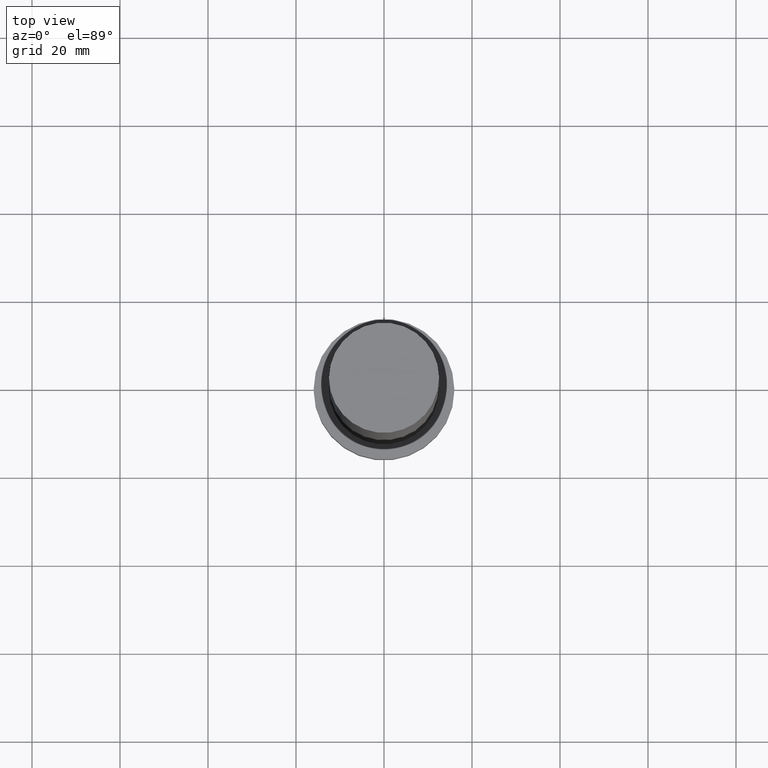
[diagram: clean part render]
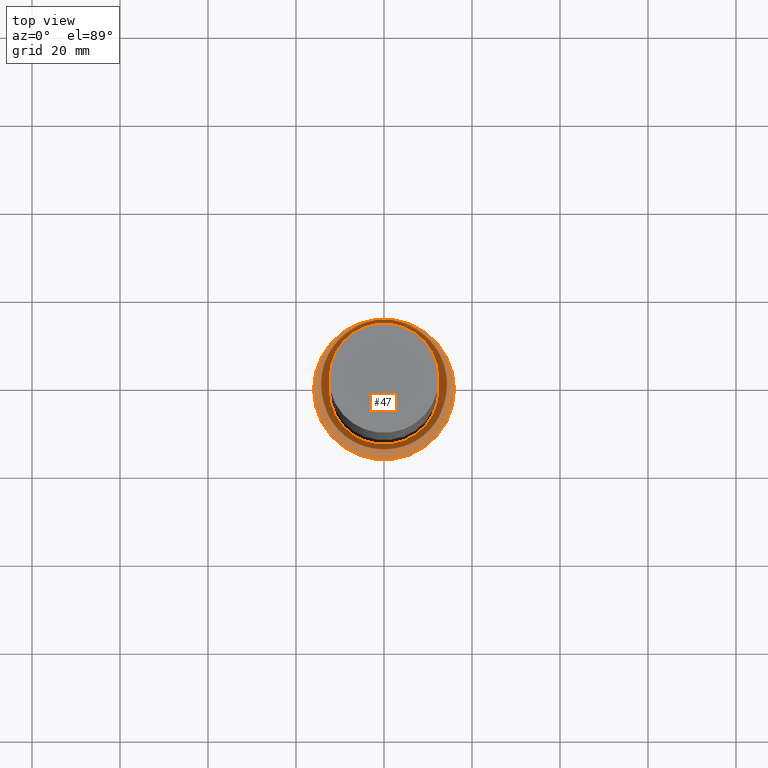
[diagram: same view with one face highlighted and labeled with its STEP entity id]
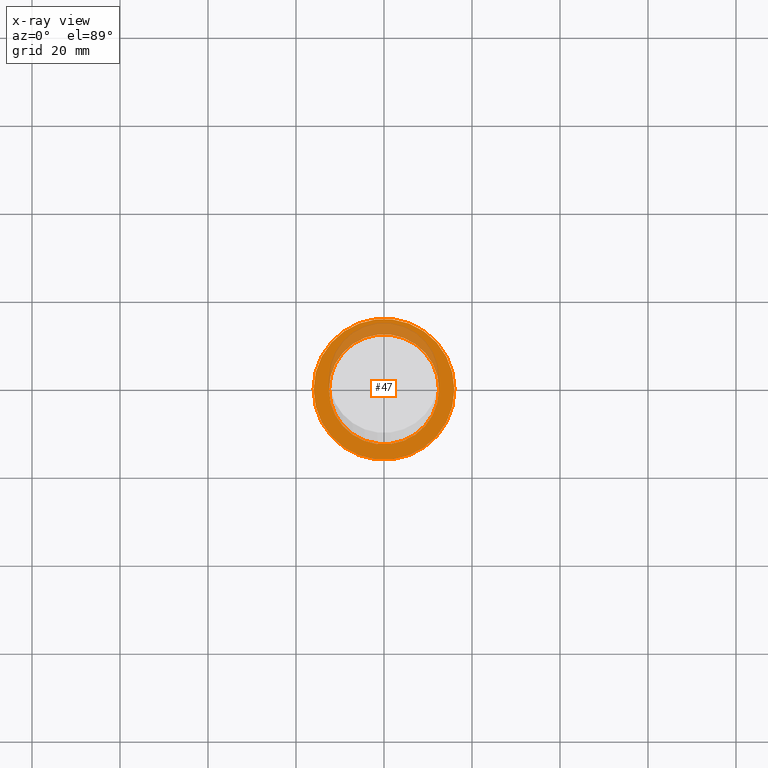
[diagram: x-ray of the same camera — body ghosted, the highlighted face saturated]
A machine part, top view. The second image highlights one B-rep face of the part: STEP entity #47.
The next image is the same camera in x-ray: the body ghosted, the highlighted face saturated — about 21% of this face is hidden behind the body in this view.
In plain terms, the highlighted planar face has unit normal (0, 0, 1).
Its self-contained STEP definition (entity closure, byte-faithful):
#7 = DIRECTION ( 'NONE',  ( 1.000000000000000000, 0.000000000000000000, 0.000000000000000000 ) ) ;
#11 = EDGE_LOOP ( 'NONE', ( #186, #249 ) ) ;
#12 = CIRCLE ( 'NONE', #31, 16.00000000000000000 ) ;
#14 = FACE_OUTER_BOUND ( 'NONE', #76, .T. ) ;
#18 = AXIS2_PLACEMENT_3D ( 'NONE', #171, #188, #152 ) ;
#22 = EDGE_CURVE ( 'NONE', #247, #222, #238, .T. ) ;
#31 = AXIS2_PLACEMENT_3D ( 'NONE', #62, #215, #45 ) ;
#36 = ORIENTED_EDGE ( 'NONE', *, *, #226, .T. ) ;
#43 = EDGE_CURVE ( 'NONE', #173, #77, #70, .T. ) ;
#45 = DIRECTION ( 'NONE',  ( 1.000000000000000000, 0.000000000000000000, 0.000000000000000000 ) ) ;
#47 = ADVANCED_FACE ( 'NONE', ( #57, #14 ), #153, .T. ) ;
#57 = FACE_BOUND ( 'NONE', #11, .T. ) ;
#62 = CARTESIAN_POINT ( 'NONE',  ( 0.000000000000000000, 0.000000000000000000, 10.00000000000000000 ) ) ;
#70 = CIRCLE ( 'NONE', #18, 12.50000000000000000 ) ;
#76 = EDGE_LOOP ( 'NONE', ( #36, #147 ) ) ;
#77 = VERTEX_POINT ( 'NONE', #213 ) ;
#87 = DIRECTION ( 'NONE',  ( 0.000000000000000000, 0.000000000000000000, 1.000000000000000000 ) ) ;
#124 = AXIS2_PLACEMENT_3D ( 'NONE', #225, #131, #208 ) ;
#131 = DIRECTION ( 'NONE',  ( 0.000000000000000000, 0.000000000000000000, 1.000000000000000000 ) ) ;
#142 = CARTESIAN_POINT ( 'NONE',  ( -16.00000000000000000, 0.000000000000000000, 10.00000000000000000 ) ) ;
#147 = ORIENTED_EDGE ( 'NONE', *, *, #22, .T. ) ;
#150 = DIRECTION ( 'NONE',  ( 1.000000000000000000, 0.000000000000000000, 0.000000000000000000 ) ) ;
#152 = DIRECTION ( 'NONE',  ( 1.000000000000000000, 0.000000000000000000, 0.000000000000000000 ) ) ;
#153 = PLANE ( 'NONE',  #124 ) ;
#156 = CARTESIAN_POINT ( 'NONE',  ( 16.00000000000000000, 1.959434878635765131E-15, 10.00000000000000000 ) ) ;
#161 = CARTESIAN_POINT ( 'NONE',  ( -12.50000000000000000, 0.000000000000000000, 10.00000000000000000 ) ) ;
#167 = CARTESIAN_POINT ( 'NONE',  ( 0.000000000000000000, 0.000000000000000000, 10.00000000000000000 ) ) ;
#171 = CARTESIAN_POINT ( 'NONE',  ( 0.000000000000000000, 0.000000000000000000, 10.00000000000000000 ) ) ;
#173 = VERTEX_POINT ( 'NONE', #161 ) ;
#174 = CIRCLE ( 'NONE', #206, 12.50000000000000000 ) ;
#182 = AXIS2_PLACEMENT_3D ( 'NONE', #167, #245, #150 ) ;
#186 = ORIENTED_EDGE ( 'NONE', *, *, #43, .F. ) ;
#188 = DIRECTION ( 'NONE',  ( 0.000000000000000000, 0.000000000000000000, 1.000000000000000000 ) ) ;
#206 = AXIS2_PLACEMENT_3D ( 'NONE', #229, #87, #7 ) ;
#208 = DIRECTION ( 'NONE',  ( 1.000000000000000000, 0.000000000000000000, -0.000000000000000000 ) ) ;
#213 = CARTESIAN_POINT ( 'NONE',  ( 12.50000000000000000, 1.530808498934191521E-15, 10.00000000000000000 ) ) ;
#215 = DIRECTION ( 'NONE',  ( 0.000000000000000000, 0.000000000000000000, 1.000000000000000000 ) ) ;
#222 = VERTEX_POINT ( 'NONE', #142 ) ;
#225 = CARTESIAN_POINT ( 'NONE',  ( 0.000000000000000000, 0.000000000000000000, 10.00000000000000000 ) ) ;
#226 = EDGE_CURVE ( 'NONE', #222, #247, #12, .T. ) ;
#229 = CARTESIAN_POINT ( 'NONE',  ( 0.000000000000000000, 0.000000000000000000, 10.00000000000000000 ) ) ;
#238 = CIRCLE ( 'NONE', #182, 16.00000000000000000 ) ;
#245 = DIRECTION ( 'NONE',  ( 0.000000000000000000, 0.000000000000000000, 1.000000000000000000 ) ) ;
#247 = VERTEX_POINT ( 'NONE', #156 ) ;
#248 = EDGE_CURVE ( 'NONE', #77, #173, #174, .T. ) ;
#249 = ORIENTED_EDGE ( 'NONE', *, *, #248, .F. ) ;